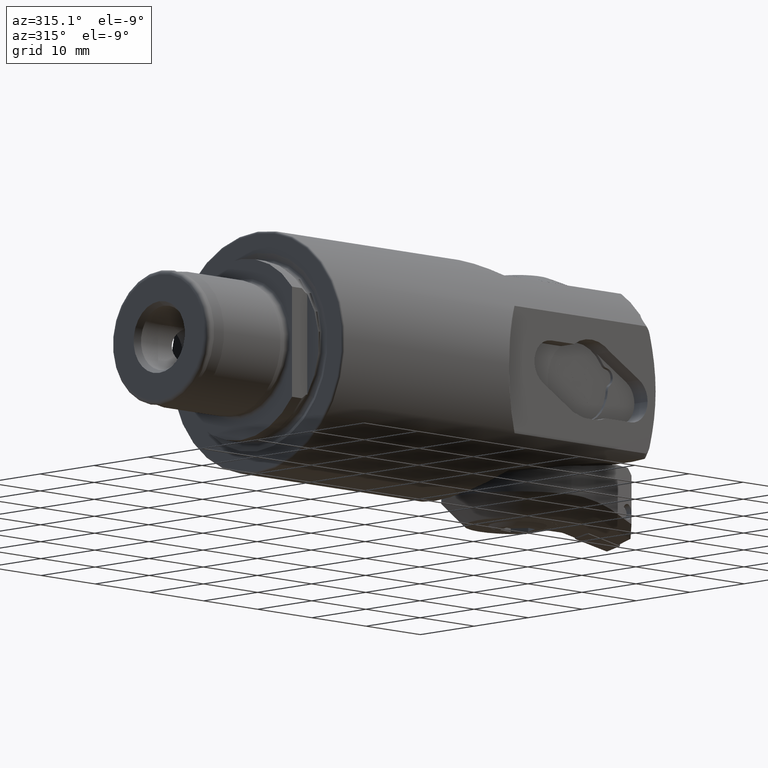
[diagram: clean part render]
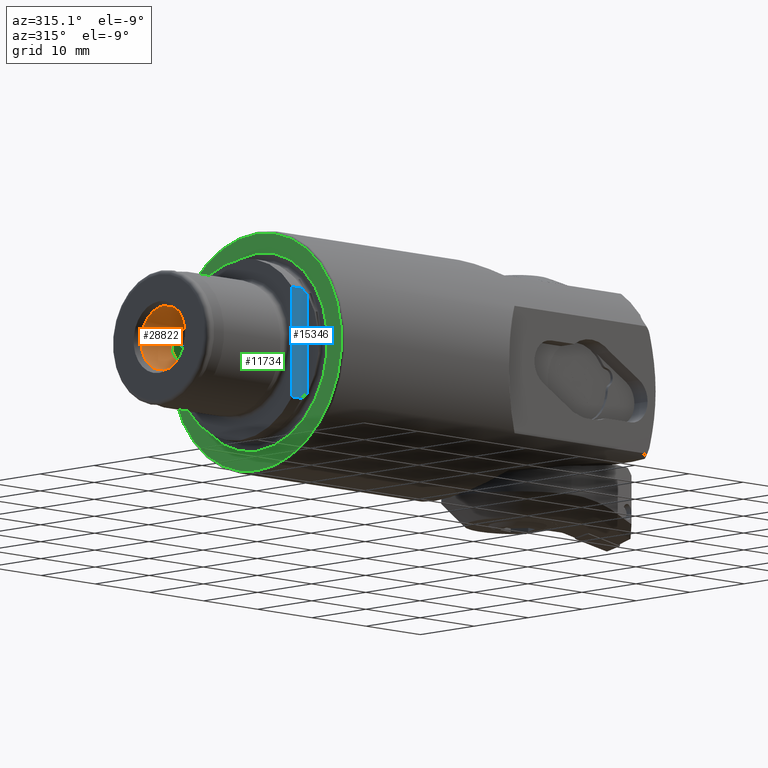
[diagram: same view with three faces highlighted in distinct colors, each labeled with its STEP entity id]
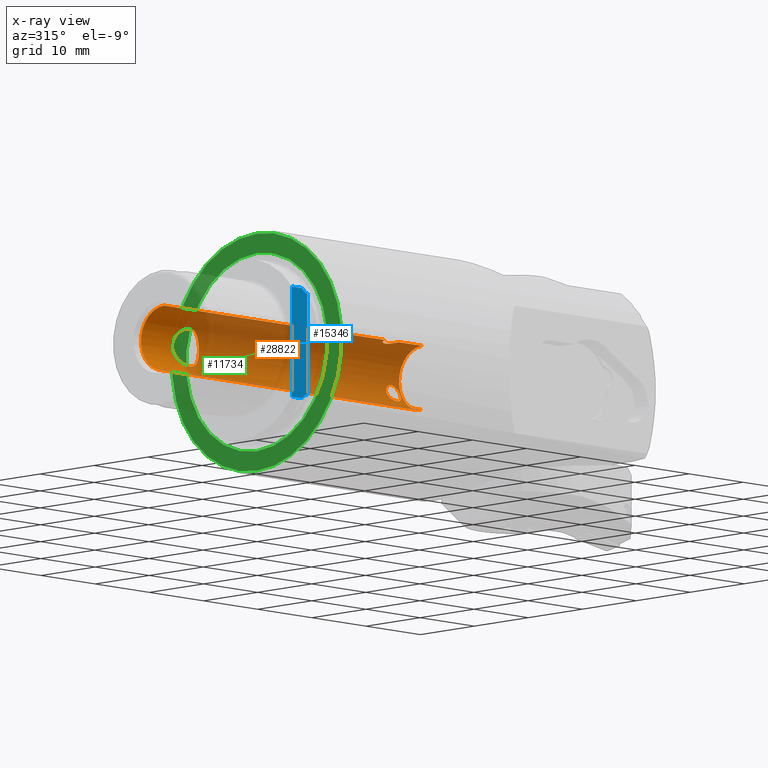
[diagram: x-ray of the same camera — body ghosted, the three highlighted faces saturated]
A machine part, auxiliary view with three faces highlighted in distinct colors.
The next image is the same camera in x-ray (body ghosted, the three faces saturated) — at least one of them is partly hidden behind the body in this view.
Their STEP definitions:

[orange] entity #28822 — the highlighted cylindrical surface (edge-blend (fillet) strip) has radius 4.25 mm, axis along (-1, -0, -0).
#351 = CARTESIAN_POINT ( 'NONE',  ( 26.21695213200542400, 0.3291615389826045300, 4.239965531149507200 ) ) ;
#356 = VECTOR ( 'NONE', #16998, 1000.000000000000000 ) ;
#669 = ORIENTED_EDGE ( 'NONE', *, *, #25901, .T. ) ;
#816 = CARTESIAN_POINT ( 'NONE',  ( -11.18893444467560100, 4.101526246119980200, -1.124291379597246700 ) ) ;
#935 = CARTESIAN_POINT ( 'NONE',  ( -10.21071883500879500, 3.658790314651206600, 2.164765124631216500 ) ) ;
#1009 = CARTESIAN_POINT ( 'NONE',  ( 24.67445332046803600, 1.209642295009307800, 4.074254205722700000 ) ) ;
#1308 = FACE_BOUND ( 'NONE', #12618, .T. ) ;
#1545 = VERTEX_POINT ( 'NONE', #27232 ) ;
#1683 = CARTESIAN_POINT ( 'NONE',  ( 28.67102412604689100, 4.193864457120944200, -0.6915418488532143500 ) ) ;
#1800 = CARTESIAN_POINT ( 'NONE',  ( 28.59461659727033500, 3.148858183602648800, -2.854514902943466200 ) ) ;
#1954 = CARTESIAN_POINT ( 'NONE',  ( 29.63142787527471700, 3.213974647842867200, -2.781571234821815300 ) ) ;
#2063 = CARTESIAN_POINT ( 'NONE',  ( 29.76308255782212000, 4.149770546130420200, -0.9187380376797050800 ) ) ;
#2070 = CARTESIAN_POINT ( 'NONE',  ( -8.290143079132498400, 3.496017747606516800, 2.417020026549793400 ) ) ;
#2154 = CARTESIAN_POINT ( 'NONE',  ( 30.50000000000000000, 4.724661668579258300E-017, 0.0000000000000000000 ) ) ;
#2192 = CARTESIAN_POINT ( 'NONE',  ( -6.466720185775357300, 4.240101146215117500, -0.3330855355430837900 ) ) ;
#2300 = CARTESIAN_POINT ( 'NONE',  ( -8.949999999999999300, 3.436931771216880100, -2.500000000000000900 ) ) ;
#2598 = LINE ( 'NONE', #9349, #15493 ) ;
#3105 = ORIENTED_EDGE ( 'NONE', *, *, #30929, .T. ) ;
#3332 = DIRECTION ( 'NONE',  ( 1.000000000000000000, 6.701708707102589200E-017, -0.0000000000000000000 ) ) ;
#3453 = CARTESIAN_POINT ( 'NONE',  ( -11.36651299544863400, 4.201346210315254100, -0.6617009324695816200 ) ) ;
#3528 = CARTESIAN_POINT ( 'NONE',  ( 30.50000000000000000, 4.250000000000000900, 5.204748896376251700E-016 ) ) ;
#3569 = CARTESIAN_POINT ( 'NONE',  ( -9.770507809446888500, 3.530576453742277000, 2.367099430028719800 ) ) ;
#3632 = ORIENTED_EDGE ( 'NONE', *, *, #13375, .F. ) ;
#3636 = CARTESIAN_POINT ( 'NONE',  ( 24.36841851149325700, 1.091178226869317100, 4.108057053095010700 ) ) ;
#3700 = ORIENTED_EDGE ( 'NONE', *, *, #24212, .T. ) ;
#3815 = CARTESIAN_POINT ( 'NONE',  ( -17.13397459621556300, 0.0000000000000000000, 4.250000000000000000 ) ) ;
#4286 = VERTEX_POINT ( 'NONE', #3528 ) ;
#4314 = CARTESIAN_POINT ( 'NONE',  ( 28.23175585502529100, 4.152389949227670100, -0.9132643871927586000 ) ) ;
#4423 = CARTESIAN_POINT ( 'NONE',  ( 28.83520635664973500, 3.108840705809111900, -2.897911597962548500 ) ) ;
#4589 = CARTESIAN_POINT ( 'NONE',  ( 29.99866346815571900, 3.421159342329648000, -2.524263377602880400 ) ) ;
#4699 = CARTESIAN_POINT ( 'NONE',  ( 29.55482715847881900, 4.176532779095766500, -0.7874840176152266800 ) ) ;
#4709 = CARTESIAN_POINT ( 'NONE',  ( -7.680524606028939200, 3.652509370040384300, 2.178122315138683700 ) ) ;
#4774 = DIRECTION ( 'NONE',  ( 0.0000000000000000000, 1.000000000000000000, 0.0000000000000000000 ) ) ;
#4783 = VERTEX_POINT ( 'NONE', #16272 ) ;
#4812 = CARTESIAN_POINT ( 'NONE',  ( -6.582429229552412900, 4.173137859088035000, -0.8195259147066718000 ) ) ;
#4836 = ORIENTED_EDGE ( 'NONE', *, *, #11604, .T. ) ;
#5967 = CARTESIAN_POINT ( 'NONE',  ( -9.611003927983913900, 3.496218784770274400, -2.416731773402510900 ) ) ;
#6077 = CARTESIAN_POINT ( 'NONE',  ( -11.44984136226545400, 4.249906683711853500, -0.1717722960006755600 ) ) ;
#6145 = CARTESIAN_POINT ( 'NONE',  ( 26.25000000000000700, -3.166329285433502400E-017, 4.250000000000000000 ) ) ;
#6179 = CARTESIAN_POINT ( 'NONE',  ( -9.285824977373092500, 3.449565780944212600, 2.482866232766090400 ) ) ;
#6255 = CARTESIAN_POINT ( 'NONE',  ( 24.05814332193478200, 0.8258736178375156700, 4.169402362585314500 ) ) ;
#6450 = VECTOR ( 'NONE', #13734, 1000.000000000000000 ) ;
#6907 = CARTESIAN_POINT ( 'NONE',  ( 27.90931219072404800, 4.057149101675075400, -1.274984921062619200 ) ) ;
#7018 = CARTESIAN_POINT ( 'NONE',  ( 28.99999999999999300, 3.102954741509931200, -2.904164573873360100 ) ) ;
#7069 = CARTESIAN_POINT ( 'NONE',  ( 28.99999999999999300, 3.102954741509931200, -2.904164573873360100 ) ) ;
#7159 = B_SPLINE_CURVE_WITH_KNOTS ( 'NONE', 3,
 ( #21324, #11001, #16175, #5967, #23826, #8530, #26306, #11113, #28790, #13663, #31343, #16295, #816, #18879, #3453, #21429, #6077, #23935, #8652, #26409, #11220, #28901, #13776, #31448, #16405, #935, #19000, #3569, #21532, #6179, #24044, #8764 ),
 .UNSPECIFIED., .F., .F.,
 ( 4, 2, 2, 2, 2, 2, 2, 2, 2, 2, 2, 2, 2, 2, 2, 4 ),
 ( 0.008008404002363691100, 0.008507975484144829300, 0.009007546965925967600, 0.009507118447707105900, 0.01000668992948824400, 0.01050626141126938300, 0.01100583289305052300, 0.01150540437483166100, 0.01200497585661279900, 0.01250454733839393700, 0.01300411882017507600, 0.01400326178373735200, 0.01450283326551849100, 0.01500240474729962900, 0.01550197622908076700, 0.01600154771086190500 ),
 .UNSPECIFIED. ) ;
#7176 = CARTESIAN_POINT ( 'NONE',  ( 30.21664662150352100, 3.666213955559789900, -2.155051681224539700 ) ) ;
#7281 = CARTESIAN_POINT ( 'NONE',  ( 29.16373965178031800, 4.198882608482636900, -0.6571794581254485300 ) ) ;
#7291 = CARTESIAN_POINT ( 'NONE',  ( -7.072416119982048800, 3.915068301803082300, 1.658319377903160200 ) ) ;
#7377 = FACE_OUTER_BOUND ( 'NONE', #31143, .T. ) ;
#7404 = CARTESIAN_POINT ( 'NONE',  ( -6.959218796294895700, 3.966791312886790900, -1.545410273531937300 ) ) ;
#7482 = AXIS2_PLACEMENT_3D ( 'NONE', #27443, #12279, #29926 ) ;
#7502 = CARTESIAN_POINT ( 'NONE',  ( 30.50000000000000000, 0.0000000000000000000, 4.250000000000000000 ) ) ;
#7688 = VERTEX_POINT ( 'NONE', #27507 ) ;
#8074 = LINE ( 'NONE', #27011, #356 ) ;
#8530 = CARTESIAN_POINT ( 'NONE',  ( -10.07052964949914300, 3.612102332899773200, -2.240728292754028000 ) ) ;
#8652 = CARTESIAN_POINT ( 'NONE',  ( -11.43317842545570600, 4.240041311409288300, 0.3339043449149398100 ) ) ;
#8727 = CARTESIAN_POINT ( 'NONE',  ( 25.99822475607754400, 0.7696265657259833100, 4.181375147283040100 ) ) ;
#8764 = CARTESIAN_POINT ( 'NONE',  ( -8.949999999999999300, 3.436931771216880500, 2.500000000000000000 ) ) ;
#8841 = CARTESIAN_POINT ( 'NONE',  ( 23.91624350170816600, 0.6281570956269464400, 4.203879923137924000 ) ) ;
#9251 = B_SPLINE_CURVE_WITH_KNOTS ( 'NONE', 3,
 ( #27130, #11950, #1683, #19723, #4314, #22238, #6907, #24744, #9515, #27238, #12059, #29730, #14637, #32250, #17255, #1800, #19826, #4423, #22352, #7018 ),
 .UNSPECIFIED., .F., .F.,
 ( 4, 2, 2, 2, 2, 2, 2, 2, 2, 4 ),
 ( 0.003929856006044741800, 0.004420952980091958700, 0.004912049954139174700, 0.005403146928186391600, 0.005894243902233607700, 0.006385340876280823700, 0.006876437850328039800, 0.007367534824375257500, 0.007613083311398865600, 0.007858631798422473600 ),
 .UNSPECIFIED. ) ;
#9349 = CARTESIAN_POINT ( 'NONE',  ( 0.5514955217248775900, 0.0000000000000000000, 4.250000000000000000 ) ) ;
#9457 = DIRECTION ( 'NONE',  ( -1.000000000000000000, -0.0000000000000000000, -0.0000000000000000000 ) ) ;
#9515 = CARTESIAN_POINT ( 'NONE',  ( 27.75001466813963400, 3.892151384614936500, -1.714878361773299900 ) ) ;
#9666 = CIRCLE ( 'NONE', #7482, 4.250000000000000000 ) ;
#9777 = CARTESIAN_POINT ( 'NONE',  ( 30.25003533807620600, 3.855617971280115100, -1.789816510295583900 ) ) ;
#9889 = CARTESIAN_POINT ( 'NONE',  ( -6.788468108492216000, 4.059403133438902200, 1.266381341007942300 ) ) ;
#9999 = CARTESIAN_POINT ( 'NONE',  ( -7.422049178072080100, 3.759235839474058600, -1.985245583915950400 ) ) ;
#10328 = CARTESIAN_POINT ( 'NONE',  ( 28.99999999999999300, 4.198882608482636100, -0.6571794581254488700 ) ) ;
#11001 = CARTESIAN_POINT ( 'NONE',  ( -9.119360981520053100, 3.436931771216947200, -2.500000000000003100 ) ) ;
#11113 = CARTESIAN_POINT ( 'NONE',  ( -10.48013810590364700, 3.760126302069690700, -1.983569451488063700 ) ) ;
#11189 = CARTESIAN_POINT ( 'NONE',  ( 0.5514955217248775900, 0.0000000000000000000, 4.250000000000000000 ) ) ;
#11220 = CARTESIAN_POINT ( 'NONE',  ( -11.31705107725426600, 4.172843866922171700, 0.8209484402078532900 ) ) ;
#11300 = CARTESIAN_POINT ( 'NONE',  ( 25.63020760184215900, 1.091698977648215300, 4.107907839567620700 ) ) ;
#11404 = CARTESIAN_POINT ( 'NONE',  ( 23.78304119283002300, 0.3288577823682014600, 4.239971816620325700 ) ) ;
#11604 = EDGE_CURVE ( 'NONE', #29801, #13285, #25212, .T. ) ;
#11950 = CARTESIAN_POINT ( 'NONE',  ( 28.83630535592719800, 4.198882608482636100, -0.6571794581254483100 ) ) ;
#12059 = CARTESIAN_POINT ( 'NONE',  ( 27.78313695506718900, 3.666538828480125000, -2.154523936809960900 ) ) ;
#12164 = CARTESIAN_POINT ( 'NONE',  ( 0.5514955217248775900, 0.0000000000000000000, 0.0000000000000000000 ) ) ;
#12279 = DIRECTION ( 'NONE',  ( -1.000000000000000000, -0.0000000000000000000, -0.0000000000000000000 ) ) ;
#12284 = DIRECTION ( 'NONE',  ( 0.0000000000000000000, 0.0000000000000000000, 1.000000000000000000 ) ) ;
#12337 = CARTESIAN_POINT ( 'NONE',  ( 30.20963127985775300, 3.952064634057252900, -1.565300004302711400 ) ) ;
#12347 = EDGE_CURVE ( 'NONE', #7688, #4286, #13691, .T. ) ;
#12440 = CARTESIAN_POINT ( 'NONE',  ( -6.584179966403217700, 4.172147053232443200, 0.8243320261206114100 ) ) ;
#12538 = CARTESIAN_POINT ( 'NONE',  ( -7.829714817701678900, 3.612052764132893200, -2.240798026658513900 ) ) ;
#12573 = CYLINDRICAL_SURFACE ( 'NONE', #25962, 4.250000000000000000 ) ;
#12618 = EDGE_LOOP ( 'NONE', ( #21812, #21554 ) ) ;
#13285 = VERTEX_POINT ( 'NONE', #26984 ) ;
#13375 = EDGE_CURVE ( 'NONE', #7688, #4783, #8074, .T. ) ;
#13663 = CARTESIAN_POINT ( 'NONE',  ( -10.82863251612690500, 3.915568280632249400, -1.657158831505805200 ) ) ;
#13691 = CIRCLE ( 'NONE', #19701, 4.250000000000000000 ) ;
#13732 = CARTESIAN_POINT ( 'NONE',  ( 26.25000000000000700, 0.1661712584552241800, 4.250000000000000900 ) ) ;
#13734 = DIRECTION ( 'NONE',  ( -1.000000000000000000, -0.0000000000000000000, -0.0000000000000000000 ) ) ;
#13776 = CARTESIAN_POINT ( 'NONE',  ( -10.94044359331169300, 3.966609160168391900, 1.545900322372182800 ) ) ;
#13853 = CARTESIAN_POINT ( 'NONE',  ( 25.16465668582380400, 1.249925461073418300, 4.062042140084422200 ) ) ;
#13925 = B_SPLINE_CURVE_WITH_KNOTS ( 'NONE', 3,
 ( #14920, #29989, #17523, #2070, #20106, #4709, #22618, #7291, #25103, #9889, #27593, #12440, #30099, #15028, #32612, #17622, #2192, #20200, #4812, #22727, #7404, #25200, #9999, #27698, #12538, #30204, #15149, #32718, #17734, #2300 ),
 .UNSPECIFIED., .F., .F.,
 ( 4, 2, 2, 2, 2, 2, 2, 2, 2, 2, 2, 2, 2, 2, 4 ),
 ( 0.0000000000000000000, 0.0005005252501477327500, 0.001001050500295465500, 0.002002101000590927100, 0.002502626250738658100, 0.003003151500886388300, 0.003503676751034118800, 0.004004202001181849000, 0.004504727251329579600, 0.005005252501477310200, 0.006006303001772770500, 0.006506828251920501000, 0.007007353502068230800, 0.007507878752215961300, 0.008008404002363691100 ),
 .UNSPECIFIED. ) ;
#13965 = CARTESIAN_POINT ( 'NONE',  ( 23.75000000000000400, -8.567111472234331200E-021, 4.250000000000000000 ) ) ;
#14515 = ORIENTED_EDGE ( 'NONE', *, *, #18515, .T. ) ;
#14637 = CARTESIAN_POINT ( 'NONE',  ( 28.00132219804886800, 3.421174207890107500, -2.524242403963291800 ) ) ;
#14760 = ORIENTED_EDGE ( 'NONE', *, *, #12347, .T. ) ;
#14912 = CARTESIAN_POINT ( 'NONE',  ( 30.09111592688449500, 4.056863782910813400, -1.275831771744103900 ) ) ;
#14920 = CARTESIAN_POINT ( 'NONE',  ( -8.949999999999999300, 3.436931771216880500, 2.500000000000000000 ) ) ;
#15028 = CARTESIAN_POINT ( 'NONE',  ( -6.467390343275668300, 4.239707322073575900, 0.3379370541077021900 ) ) ;
#15083 = CARTESIAN_POINT ( 'NONE',  ( -8.949999999999999300, 3.436931771216880100, -2.500000000000000900 ) ) ;
#15149 = CARTESIAN_POINT ( 'NONE',  ( -8.287983905729410200, 3.496387728650832900, -2.416490147920053100 ) ) ;
#15493 = VECTOR ( 'NONE', #9457, 1000.000000000000000 ) ;
#16175 = CARTESIAN_POINT ( 'NONE',  ( -9.285890175099439100, 3.449556755280119200, -2.482880675275207100 ) ) ;
#16272 = CARTESIAN_POINT ( 'NONE',  ( -17.13397459621556300, 5.204748896376250700E-016, -4.250000000000000000 ) ) ;
#16295 = CARTESIAN_POINT ( 'NONE',  ( -11.11182896885780900, 4.059567741326262100, -1.265801194018472100 ) ) ;
#16405 = CARTESIAN_POINT ( 'NONE',  ( -10.47649178221980500, 3.758658237566182800, 1.986313888734846600 ) ) ;
#16472 = CARTESIAN_POINT ( 'NONE',  ( 24.83516110677720000, 1.241790345312263200, 4.064571140109833000 ) ) ;
#16998 = DIRECTION ( 'NONE',  ( -1.000000000000000000, -0.0000000000000000000, -0.0000000000000000000 ) ) ;
#17137 = ORIENTED_EDGE ( 'NONE', *, *, #32516, .T. ) ;
#17255 = CARTESIAN_POINT ( 'NONE',  ( 28.36863480824550600, 3.213999067933139400, -2.781539637969545600 ) ) ;
#17411 = CARTESIAN_POINT ( 'NONE',  ( 29.32914353728787700, 3.126924099950536100, -2.879082708869853400 ) ) ;
#17518 = CARTESIAN_POINT ( 'NONE',  ( 29.82571410399682300, 4.138184997791355200, -0.9702596169569410700 ) ) ;
#17523 = CARTESIAN_POINT ( 'NONE',  ( -8.614558658352452300, 3.449528928600150900, 2.482916847394047300 ) ) ;
#17583 = VERTEX_POINT ( 'NONE', #10328 ) ;
#17622 = CARTESIAN_POINT ( 'NONE',  ( -6.449721215066393400, 4.250163990985662100, -0.1641446584794517300 ) ) ;
#17734 = CARTESIAN_POINT ( 'NONE',  ( -8.780315679072884900, 3.436931771216947200, -2.500000000000004000 ) ) ;
#18471 = CARTESIAN_POINT ( 'NONE',  ( -8.949999999999999300, 3.436931771216880500, 2.500000000000000000 ) ) ;
#18515 = EDGE_CURVE ( 'NONE', #4286, #22567, #22807, .T. ) ;
#18771 = CARTESIAN_POINT ( 'NONE',  ( 30.50000000000000000, 4.724661668579258300E-017, 0.0000000000000000000 ) ) ;
#18879 = CARTESIAN_POINT ( 'NONE',  ( -11.31654730121697300, 4.172557516554271700, -0.8223821647471306600 ) ) ;
#19000 = CARTESIAN_POINT ( 'NONE',  ( -10.06995793739458700, 3.611930621134519000, 2.241001337677532800 ) ) ;
#19076 = CARTESIAN_POINT ( 'NONE',  ( 24.59629918399568600, 1.185871799990202400, 4.081333574036496400 ) ) ;
#19305 = AXIS2_PLACEMENT_3D ( 'NONE', #18771, #3332, #21322 ) ;
#19701 = AXIS2_PLACEMENT_3D ( 'NONE', #2154, #20163, #4774 ) ;
#19723 = CARTESIAN_POINT ( 'NONE',  ( 28.36975232108415000, 4.170742350763061900, -0.8195349028376236500 ) ) ;
#19826 = CARTESIAN_POINT ( 'NONE',  ( 28.67440137328291500, 3.131650671077874200, -2.873246637175280100 ) ) ;
#19979 = CARTESIAN_POINT ( 'NONE',  ( 29.76947433186514800, 3.276839754428038500, -2.708977310520803700 ) ) ;
#20096 = CARTESIAN_POINT ( 'NONE',  ( 29.62802265281875300, 4.168932882763076700, -0.8274501715679638500 ) ) ;
#20106 = CARTESIAN_POINT ( 'NONE',  ( -8.130198076884568100, 3.530405702426771000, 2.367355266063166900 ) ) ;
#20163 = DIRECTION ( 'NONE',  ( 1.000000000000000000, 6.701708707102589200E-017, -0.0000000000000000000 ) ) ;
#20200 = CARTESIAN_POINT ( 'NONE',  ( -6.532669370054022400, 4.201817043717420900, -0.6588909130110856000 ) ) ;
#20224 = EDGE_CURVE ( 'NONE', #31226, #21735, #7159, .T. ) ;
#21046 = FACE_BOUND ( 'NONE', #23054, .T. ) ;
#21322 = DIRECTION ( 'NONE',  ( 0.0000000000000000000, 1.000000000000000000, 0.0000000000000000000 ) ) ;
#21324 = CARTESIAN_POINT ( 'NONE',  ( -8.949999999999999300, 3.436931771216880100, -2.500000000000000900 ) ) ;
#21429 = CARTESIAN_POINT ( 'NONE',  ( -11.43264616313544700, 4.239729577825615400, -0.3374184492171403100 ) ) ;
#21532 = CARTESIAN_POINT ( 'NONE',  ( -9.610266474131648800, 3.496094603768017600, 2.416909458042539000 ) ) ;
#21554 = ORIENTED_EDGE ( 'NONE', *, *, #31121, .F. ) ;
#21601 = CARTESIAN_POINT ( 'NONE',  ( 24.23122296321860200, 0.9990629641527637400, 4.132590757472405200 ) ) ;
#21735 = VERTEX_POINT ( 'NONE', #18471 ) ;
#21812 = ORIENTED_EDGE ( 'NONE', *, *, #22523, .F. ) ;
#22238 = CARTESIAN_POINT ( 'NONE',  ( 28.00102427768126700, 4.095386938603706300, -1.142015741781039000 ) ) ;
#22352 = CARTESIAN_POINT ( 'NONE',  ( 28.91693361408596600, 3.102954741509935700, -2.904164573873362800 ) ) ;
#22393 = CARTESIAN_POINT ( 'NONE',  ( 29.16617844989679000, 3.102954741509935700, -2.904164573873362800 ) ) ;
#22501 = CARTESIAN_POINT ( 'NONE',  ( 30.09164123311096300, 3.503759220983925900, -2.410195809070333300 ) ) ;
#22523 = EDGE_CURVE ( 'NONE', #1545, #17583, #25366, .T. ) ;
#22567 = VERTEX_POINT ( 'NONE', #7502 ) ;
#22611 = CARTESIAN_POINT ( 'NONE',  ( 29.32882710667866600, 4.193871810529953900, -0.6914967594179051200 ) ) ;
#22618 = CARTESIAN_POINT ( 'NONE',  ( -7.410689511899343000, 3.760549308797425100, 1.995470060851040900 ) ) ;
#22727 = CARTESIAN_POINT ( 'NONE',  ( -6.773937539498486000, 4.066509656143492400, -1.273895003448257700 ) ) ;
#22807 = CIRCLE ( 'NONE', #19305, 4.250000000000000000 ) ;
#23054 = EDGE_LOOP ( 'NONE', ( #3700, #27491 ) ) ;
#23826 = CARTESIAN_POINT ( 'NONE',  ( -9.770778278787444600, 3.530633590570194900, -2.367017742735736200 ) ) ;
#23935 = CARTESIAN_POINT ( 'NONE',  ( -11.45015647629201000, 4.250092044851541600, 0.1671231648266812100 ) ) ;
#24002 = CARTESIAN_POINT ( 'NONE',  ( 26.09108583613213700, 0.6315469171247482000, 4.205568156093956800 ) ) ;
#24044 = CARTESIAN_POINT ( 'NONE',  ( -9.119365922150784300, 3.436931771216880500, 2.499999999999999600 ) ) ;
#24116 = CARTESIAN_POINT ( 'NONE',  ( 24.00673883581616900, 0.7632442231032332500, 4.181464576060419000 ) ) ;
#24212 = EDGE_CURVE ( 'NONE', #21735, #31226, #13925, .T. ) ;
#24744 = CARTESIAN_POINT ( 'NONE',  ( 27.78245948767801800, 3.954639391429304300, -1.564248275024007700 ) ) ;
#24994 = CARTESIAN_POINT ( 'NONE',  ( 30.24992897379239000, 3.747677756812979300, -2.011055383381728400 ) ) ;
#25093 = CARTESIAN_POINT ( 'NONE',  ( 28.99999999999999300, 4.198882608482636100, -0.6571794581254488700 ) ) ;
#25103 = CARTESIAN_POINT ( 'NONE',  ( -6.968838554235398800, 3.966299831827195400, 1.533277908493503100 ) ) ;
#25200 = CARTESIAN_POINT ( 'NONE',  ( -7.297635395967075700, 3.812183057567279000, -1.882834802626088200 ) ) ;
#25212 = B_SPLINE_CURVE_WITH_KNOTS ( 'NONE', 3,
 ( #6145, #13732, #351, #24002, #8727, #26481, #11300, #28976, #13853, #31522, #16472, #1009, #19076, #3636, #21601, #6255, #24116, #8841, #26595, #11404, #29085, #13965 ),
 .UNSPECIFIED., .F., .F.,
 ( 4, 2, 2, 2, 2, 2, 2, 2, 2, 2, 4 ),
 ( 3.074599605677551800E-020, 0.0004912396444024559600, 0.0009824792888049119200, 0.001473718933207367900, 0.001964958577609823800, 0.002210578399811051800, 0.002456198222012279800, 0.002947437866414735800, 0.003193057688615964200, 0.003438677510817192200, 0.003929917155219649400 ),
 .UNSPECIFIED. ) ;
#25366 = B_SPLINE_CURVE_WITH_KNOTS ( 'NONE', 3,
 ( #7069, #22393, #17411, #1954, #19979, #4589, #22501, #7176, #24994, #9777, #27487, #12337, #29979, #14912, #32498, #17518, #2063, #20096, #4699, #22611, #7281, #25093 ),
 .UNSPECIFIED., .F., .F.,
 ( 4, 2, 2, 2, 2, 2, 2, 2, 2, 2, 4 ),
 ( 0.0000000000000000000, 0.0004912320007555919600, 0.0009824640015111839200, 0.001473696002266776000, 0.001964928003022367800, 0.002210544003400163400, 0.002456160003777958600, 0.002947392004533545500, 0.003193008004911342400, 0.003438624005289138900, 0.003929856006044741800 ),
 .UNSPECIFIED. ) ;
#25901 = EDGE_CURVE ( 'NONE', #22567, #29801, #2598, .T. ) ;
#25962 = AXIS2_PLACEMENT_3D ( 'NONE', #12164, #29933, #12284 ) ;
#26306 = CARTESIAN_POINT ( 'NONE',  ( -10.21334094108633600, 3.659679974779597200, -2.163293798491121600 ) ) ;
#26409 = CARTESIAN_POINT ( 'NONE',  ( -11.36705442601527200, 4.201657688118911200, 0.6599356831401975700 ) ) ;
#26481 = CARTESIAN_POINT ( 'NONE',  ( 25.76889057471961700, 0.9987917693015785400, 4.132630902290072700 ) ) ;
#26595 = CARTESIAN_POINT ( 'NONE',  ( 23.87696444912231500, 0.5549326051945896500, 4.214297321663676300 ) ) ;
#26743 = LINE ( 'NONE', #11189, #6450 ) ;
#26984 = CARTESIAN_POINT ( 'NONE',  ( 23.75000000000000400, -8.567111472234331200E-021, 4.250000000000000000 ) ) ;
#27011 = CARTESIAN_POINT ( 'NONE',  ( 0.5514955217248775900, 5.204748896376250700E-016, -4.250000000000000000 ) ) ;
#27130 = CARTESIAN_POINT ( 'NONE',  ( 28.99999999999999300, 4.198882608482636100, -0.6571794581254488700 ) ) ;
#27232 = CARTESIAN_POINT ( 'NONE',  ( 28.99999999999999300, 3.102954741509931200, -2.904164573873360100 ) ) ;
#27238 = CARTESIAN_POINT ( 'NONE',  ( 27.74998534175942000, 3.747695533104670900, -2.011076425098147400 ) ) ;
#27345 = VERTEX_POINT ( 'NONE', #3815 ) ;
#27443 = CARTESIAN_POINT ( 'NONE',  ( -17.13397459621556300, 0.0000000000000000000, 0.0000000000000000000 ) ) ;
#27487 = CARTESIAN_POINT ( 'NONE',  ( 30.24178614741040900, 3.889960304004818100, -1.713822572060161900 ) ) ;
#27491 = ORIENTED_EDGE ( 'NONE', *, *, #20224, .T. ) ;
#27507 = CARTESIAN_POINT ( 'NONE',  ( 30.50000000000000000, 5.204748896376250700E-016, -4.250000000000000000 ) ) ;
#27593 = CARTESIAN_POINT ( 'NONE',  ( -6.711408381066712900, 4.101341126849441700, 1.124871230095973800 ) ) ;
#27698 = CARTESIAN_POINT ( 'NONE',  ( -7.688846548696184300, 3.658924488192060800, -2.164561321596702600 ) ) ;
#28529 = CARTESIAN_POINT ( 'NONE',  ( 26.25000000000000700, -3.166329285433502400E-017, 4.250000000000000000 ) ) ;
#28790 = CARTESIAN_POINT ( 'NONE',  ( -10.60282677047961300, 3.812381298199085700, -1.882445003253193900 ) ) ;
#28822 = ADVANCED_FACE ( 'NONE', ( #7377, #21046, #1308 ), #12573, .F. ) ;
#28901 = CARTESIAN_POINT ( 'NONE',  ( -11.12578906747076100, 4.066366757640398800, 1.274162669801590200 ) ) ;
#28976 = CARTESIAN_POINT ( 'NONE',  ( 25.32977093881579800, 1.216642678492887900, 4.072651970037328300 ) ) ;
#29085 = CARTESIAN_POINT ( 'NONE',  ( 23.75000000000001800, 0.1637480716675240600, 4.250000000000002700 ) ) ;
#29730 = CARTESIAN_POINT ( 'NONE',  ( 27.90835747582542900, 3.503717361609620400, -2.410279034675201000 ) ) ;
#29801 = VERTEX_POINT ( 'NONE', #28529 ) ;
#29926 = DIRECTION ( 'NONE',  ( 0.0000000000000000000, 0.0000000000000000000, 1.000000000000000000 ) ) ;
#29933 = DIRECTION ( 'NONE',  ( -1.000000000000000000, -0.0000000000000000000, -0.0000000000000000000 ) ) ;
#29979 = CARTESIAN_POINT ( 'NONE',  ( 30.18585365876120700, 3.980215110902652200, -1.492057400592709400 ) ) ;
#29989 = CARTESIAN_POINT ( 'NONE',  ( -8.780310729009629600, 3.436931771216880100, 2.499999999999999600 ) ) ;
#30099 = CARTESIAN_POINT ( 'NONE',  ( -6.533860636026943800, 4.201130430648815300, 0.6631913253803712900 ) ) ;
#30204 = CARTESIAN_POINT ( 'NONE',  ( -8.128106184868279600, 3.530919954424721400, -2.366580918245156700 ) ) ;
#30929 = EDGE_CURVE ( 'NONE', #13285, #27345, #26743, .T. ) ;
#31121 = EDGE_CURVE ( 'NONE', #17583, #1545, #9251, .T. ) ;
#31143 = EDGE_LOOP ( 'NONE', ( #3632, #14760, #14515, #669, #4836, #3105, #17137 ) ) ;
#31226 = VERTEX_POINT ( 'NONE', #15083 ) ;
#31343 = CARTESIAN_POINT ( 'NONE',  ( -10.93223159205088300, 3.966841040468922100, -1.531833890748872900 ) ) ;
#31448 = CARTESIAN_POINT ( 'NONE',  ( -10.60162719533696900, 3.811860179127865200, 1.883493027287289000 ) ) ;
#31522 = CARTESIAN_POINT ( 'NONE',  ( 24.91852191989136500, 1.250037076677460400, 4.062007792760493200 ) ) ;
#32250 = CARTESIAN_POINT ( 'NONE',  ( 28.23045499751553000, 3.276878418012601400, -2.708929771747899700 ) ) ;
#32498 = CARTESIAN_POINT ( 'NONE',  ( 29.99895140732645200, 4.095406529538038000, -1.141954709604780000 ) ) ;
#32516 = EDGE_CURVE ( 'NONE', #27345, #4783, #9666, .T. ) ;
#32612 = CARTESIAN_POINT ( 'NONE',  ( -6.450285815688089600, 4.249831873278314000, 0.1725296149831668200 ) ) ;
#32718 = CARTESIAN_POINT ( 'NONE',  ( -8.614093975716622600, 3.449535432074398900, -2.482913024436839600 ) ) ;

[blue] entity #15346 — the highlighted planar face has unit normal (0, -1, 0).
#159 = VERTEX_POINT ( 'NONE', #19375 ) ;
#280 = CARTESIAN_POINT ( 'NONE',  ( -0.5035709570447475200, -9.500000000000000000, 6.797116413150234800 ) ) ;
#448 = B_SPLINE_CURVE_WITH_KNOTS ( 'NONE', 3,
 ( #16935, #1496, #19536, #4099 ),
 .UNSPECIFIED., .F., .F.,
 ( 4, 4 ),
 ( 0.01042464726496666000, 0.01122204267442680800 ),
 .UNSPECIFIED. ) ;
#589 = EDGE_CURVE ( 'NONE', #9552, #26381, #14616, .T. ) ;
#680 = CARTESIAN_POINT ( 'NONE',  ( -0.1499999999999999900, -9.500000000000000000, 6.714596780918523000 ) ) ;
#1496 = CARTESIAN_POINT ( 'NONE',  ( -0.9220184284008929900, -9.500000000000000000, -7.128393479506466500 ) ) ;
#1593 = CARTESIAN_POINT ( 'NONE',  ( -0.2500000000000001700, -9.500000000000000000, 6.700046641628691900 ) ) ;
#1896 = EDGE_LOOP ( 'NONE', ( #16954, #24049, #10290, #4343, #22482, #30712, #18195, #23888, #7535, #8592 ) ) ;
#2009 = B_SPLINE_CURVE_WITH_KNOTS ( 'NONE', 3,
 ( #13907, #29033, #19137, #3693, #21645, #6312 ),
 .UNSPECIFIED., .F., .F.,
 ( 4, 2, 4 ),
 ( 0.004926655293143785600, 0.005063940159639557900, 0.005201225026135329400 ),
 .UNSPECIFIED. ) ;
#3290 = CARTESIAN_POINT ( 'NONE',  ( -0.2160619950023482100, -9.500000000000000000, 6.701303026369363800 ) ) ;
#3578 = CARTESIAN_POINT ( 'NONE',  ( -0.2331855074417942000, -9.499999999999998200, -6.700046641628803800 ) ) ;
#3693 = CARTESIAN_POINT ( 'NONE',  ( -0.4276727299030980100, -9.500000000000000000, 6.743723515964605400 ) ) ;
#3780 = DIRECTION ( 'NONE',  ( -1.000000000000000000, -0.0000000000000000000, -0.0000000000000000000 ) ) ;
#4099 = CARTESIAN_POINT ( 'NONE',  ( -0.5035709570444205600, -9.500000000000000000, -6.797116413150202900 ) ) ;
#4326 = CARTESIAN_POINT ( 'NONE',  ( -2.950000000000000600, -9.500000000000003600, 7.290447517128146900 ) ) ;
#4343 = ORIENTED_EDGE ( 'NONE', *, *, #589, .T. ) ;
#4930 = EDGE_CURVE ( 'NONE', #20979, #24387, #26365, .T. ) ;
#5194 = VECTOR ( 'NONE', #3780, 1000.000000000000000 ) ;
#5466 = B_SPLINE_CURVE_WITH_KNOTS ( 'NONE', 3,
 ( #13789, #3578, #6191, #24054, #8776, #26538 ),
 .UNSPECIFIED., .F., .F.,
 ( 4, 2, 4 ),
 ( 9.026683852806787000E-005, 0.0001405732738718612600, 0.0001908797092156546600 ),
 .UNSPECIFIED. ) ;
#5926 = CARTESIAN_POINT ( 'NONE',  ( -0.2500000000000001700, -9.500000000000000000, 6.700046641628691900 ) ) ;
#6059 = CARTESIAN_POINT ( 'NONE',  ( -0.1499999999999999900, -9.500000000000000000, 6.714596780918523000 ) ) ;
#6191 = CARTESIAN_POINT ( 'NONE',  ( -0.2161448894626417600, -9.500000000000001800, -6.701294294045143700 ) ) ;
#6312 = CARTESIAN_POINT ( 'NONE',  ( -0.5035709570447475200, -9.500000000000000000, 6.797116413150234800 ) ) ;
#6720 = CARTESIAN_POINT ( 'NONE',  ( -0.1499999999999999900, -9.500000000000000000, -6.714596780918523000 ) ) ;
#7144 = EDGE_CURVE ( 'NONE', #159, #24760, #9131, .T. ) ;
#7535 = ORIENTED_EDGE ( 'NONE', *, *, #7144, .F. ) ;
#8592 = ORIENTED_EDGE ( 'NONE', *, *, #22137, .F. ) ;
#8776 = CARTESIAN_POINT ( 'NONE',  ( -0.1661228663407650900, -9.500000000000001800, -6.709875121507482600 ) ) ;
#9131 = LINE ( 'NONE', #13623, #28535 ) ;
#9552 = VERTEX_POINT ( 'NONE', #6720 ) ;
#9763 = VERTEX_POINT ( 'NONE', #1593 ) ;
#10177 = AXIS2_PLACEMENT_3D ( 'NONE', #26977, #11781, #29446 ) ;
#10290 = ORIENTED_EDGE ( 'NONE', *, *, #13667, .T. ) ;
#10556 = CARTESIAN_POINT ( 'NONE',  ( -0.7117733968117867500, -9.500000000000000000, 6.963964673898071400 ) ) ;
#11063 = LINE ( 'NONE', #25022, #11855 ) ;
#11081 = EDGE_CURVE ( 'NONE', #30292, #13940, #32864, .T. ) ;
#11681 = PLANE ( 'NONE',  #10177 ) ;
#11747 = DIRECTION ( 'NONE',  ( -0.0000000000000000000, 0.0000000000000000000, 1.000000000000000000 ) ) ;
#11781 = DIRECTION ( 'NONE',  ( 0.0000000000000000000, -1.000000000000000000, 0.0000000000000000000 ) ) ;
#11855 = VECTOR ( 'NONE', #12462, 1000.000000000000000 ) ;
#11872 = B_SPLINE_CURVE_WITH_KNOTS ( 'NONE', 3,
 ( #680, #16128, #18736, #3290, #21278, #5926 ),
 .UNSPECIFIED., .F., .F.,
 ( 4, 2, 4 ),
 ( 0.004826532787920750900, 0.004876594040532268200, 0.004926655293143785600 ),
 .UNSPECIFIED. ) ;
#11905 = CARTESIAN_POINT ( 'NONE',  ( -1.133594219764112500, -9.500000000000000000, -7.290447517128149500 ) ) ;
#11999 = CARTESIAN_POINT ( 'NONE',  ( -0.1499999999999973600, -9.500000000000000000, -7.290447517128149500 ) ) ;
#12074 = CARTESIAN_POINT ( 'NONE',  ( -0.2500000000006941100, -9.500000000000000000, -6.700046641625081500 ) ) ;
#12183 = CARTESIAN_POINT ( 'NONE',  ( -0.2960169963787270800, -9.500000000000001800, -6.700046641628880200 ) ) ;
#12462 = DIRECTION ( 'NONE',  ( -1.000000000000000000, -0.0000000000000000000, -0.0000000000000000000 ) ) ;
#13394 = DIRECTION ( 'NONE',  ( 0.0000000000000000000, 0.0000000000000000000, 1.000000000000000000 ) ) ;
#13539 = CARTESIAN_POINT ( 'NONE',  ( -0.3421084205378476200, -9.500000000000000000, -6.709556162475869300 ) ) ;
#13623 = CARTESIAN_POINT ( 'NONE',  ( -2.950000000000000600, -9.500000000000000000, -7.290447517128149500 ) ) ;
#13667 = EDGE_CURVE ( 'NONE', #24387, #9552, #5466, .T. ) ;
#13755 = CARTESIAN_POINT ( 'NONE',  ( -0.4280267599753838600, -9.500000000000001800, -6.743907391898615000 ) ) ;
#13789 = CARTESIAN_POINT ( 'NONE',  ( -0.2500000000006941100, -9.500000000000000000, -6.700046641625081500 ) ) ;
#13907 = CARTESIAN_POINT ( 'NONE',  ( -0.2500000000000001700, -9.500000000000000000, 6.700046641628691900 ) ) ;
#13940 = VERTEX_POINT ( 'NONE', #30199 ) ;
#13980 = CARTESIAN_POINT ( 'NONE',  ( -0.4677237084169933400, -9.499999999999998200, -6.768389319014279900 ) ) ;
#14204 = EDGE_CURVE ( 'NONE', #27466, #20979, #448, .T. ) ;
#14616 = LINE ( 'NONE', #11999, #15429 ) ;
#15252 = EDGE_CURVE ( 'NONE', #9763, #30292, #2009, .T. ) ;
#15346 = ADVANCED_FACE ( 'NONE', ( #22374 ), #11681, .T. ) ;
#15429 = VECTOR ( 'NONE', #11747, 1000.000000000000000 ) ;
#16128 = CARTESIAN_POINT ( 'NONE',  ( -0.1660890463651576200, -9.499999999999998200, 6.709885025850960400 ) ) ;
#16935 = CARTESIAN_POINT ( 'NONE',  ( -1.133594219764112500, -9.500000000000000000, -7.290447517128149500 ) ) ;
#16954 = ORIENTED_EDGE ( 'NONE', *, *, #14204, .T. ) ;
#18195 = ORIENTED_EDGE ( 'NONE', *, *, #11081, .T. ) ;
#18309 = CARTESIAN_POINT ( 'NONE',  ( -1.133594219764112500, -9.500000000000003600, 7.290447517128146900 ) ) ;
#18528 = CARTESIAN_POINT ( 'NONE',  ( -0.5035709570444205600, -9.500000000000000000, -6.797116413150202900 ) ) ;
#18627 = EDGE_CURVE ( 'NONE', #13940, #24760, #32153, .T. ) ;
#18736 = CARTESIAN_POINT ( 'NONE',  ( -0.1825058222798745200, -9.500000000000001800, 6.706240194861877100 ) ) ;
#19137 = CARTESIAN_POINT ( 'NONE',  ( -0.3418242025934660800, -9.500000000000001800, 6.709485174750219500 ) ) ;
#19375 = CARTESIAN_POINT ( 'NONE',  ( -2.950000000000000600, -9.500000000000000000, -7.290447517128149500 ) ) ;
#19536 = CARTESIAN_POINT ( 'NONE',  ( -0.7119224968675071900, -9.500000000000000000, -6.964084158977124500 ) ) ;
#20979 = VERTEX_POINT ( 'NONE', #22707 ) ;
#21278 = CARTESIAN_POINT ( 'NONE',  ( -0.2330310391902821700, -9.500000000000001800, 6.700046641628694600 ) ) ;
#21645 = CARTESIAN_POINT ( 'NONE',  ( -0.4674912082988583200, -9.500000000000001800, 6.768202999200018300 ) ) ;
#22137 = EDGE_CURVE ( 'NONE', #27466, #159, #11063, .T. ) ;
#22374 = FACE_OUTER_BOUND ( 'NONE', #1896, .T. ) ;
#22482 = ORIENTED_EDGE ( 'NONE', *, *, #32267, .T. ) ;
#22707 = CARTESIAN_POINT ( 'NONE',  ( -0.5035709570444205600, -9.500000000000000000, -6.797116413150202900 ) ) ;
#23281 = CARTESIAN_POINT ( 'NONE',  ( -0.2500000000006941100, -9.500000000000000000, -6.700046641625081500 ) ) ;
#23888 = ORIENTED_EDGE ( 'NONE', *, *, #18627, .T. ) ;
#24049 = ORIENTED_EDGE ( 'NONE', *, *, #4930, .T. ) ;
#24054 = CARTESIAN_POINT ( 'NONE',  ( -0.1825639521166483000, -9.500000000000000000, -6.706228192593197700 ) ) ;
#24387 = VERTEX_POINT ( 'NONE', #23281 ) ;
#24760 = VERTEX_POINT ( 'NONE', #4326 ) ;
#25022 = CARTESIAN_POINT ( 'NONE',  ( 45.70738233589843000, -9.500000000000000000, -7.290447517128149500 ) ) ;
#26365 = B_SPLINE_CURVE_WITH_KNOTS ( 'NONE', 3,
 ( #18528, #13980, #13755, #13539, #12183, #12074 ),
 .UNSPECIFIED., .F., .F.,
 ( 4, 2, 4 ),
 ( 0.004770283804107076200, 0.004907959743178681700, 0.005045635682250286400 ),
 .UNSPECIFIED. ) ;
#26381 = VERTEX_POINT ( 'NONE', #6059 ) ;
#26538 = CARTESIAN_POINT ( 'NONE',  ( -0.1499999999999999900, -9.500000000000000000, -6.714596780918523000 ) ) ;
#26977 = CARTESIAN_POINT ( 'NONE',  ( 45.70738233589843000, -9.500000000000000000, -7.290447517128149500 ) ) ;
#27466 = VERTEX_POINT ( 'NONE', #11905 ) ;
#28250 = CARTESIAN_POINT ( 'NONE',  ( -0.9218748820032580700, -9.500000000000000000, 7.128283531798485000 ) ) ;
#28535 = VECTOR ( 'NONE', #13394, 1000.000000000000000 ) ;
#29033 = CARTESIAN_POINT ( 'NONE',  ( -0.2965346230429340400, -9.499999999999998200, 6.700046641628692800 ) ) ;
#29217 = CARTESIAN_POINT ( 'NONE',  ( 45.70738233589843000, -9.500000000000003600, 7.290447517128146900 ) ) ;
#29446 = DIRECTION ( 'NONE',  ( 0.0000000000000000000, -0.0000000000000000000, -1.000000000000000000 ) ) ;
#30199 = CARTESIAN_POINT ( 'NONE',  ( -1.133594219764112500, -9.500000000000003600, 7.290447517128146900 ) ) ;
#30292 = VERTEX_POINT ( 'NONE', #30919 ) ;
#30712 = ORIENTED_EDGE ( 'NONE', *, *, #15252, .T. ) ;
#30919 = CARTESIAN_POINT ( 'NONE',  ( -0.5035709570447475200, -9.500000000000000000, 6.797116413150234800 ) ) ;
#32153 = LINE ( 'NONE', #29217, #5194 ) ;
#32267 = EDGE_CURVE ( 'NONE', #26381, #9763, #11872, .T. ) ;
#32864 = B_SPLINE_CURVE_WITH_KNOTS ( 'NONE', 3,
 ( #280, #10556, #28250, #18309 ),
 .UNSPECIFIED., .F., .F.,
 ( 4, 4 ),
 ( 0.02809434223629926300, 0.02889067246149117100 ),
 .UNSPECIFIED. ) ;

[green] entity #11734 — the highlighted planar face has unit normal (1, 0, 0).
#29 = FACE_OUTER_BOUND ( 'NONE', #20842, .T. ) ;
#379 = CARTESIAN_POINT ( 'NONE',  ( 0.0000000000000000000, 1.605339795255561400E-015, -13.10859421976411100 ) ) ;
#1742 = CARTESIAN_POINT ( 'NONE',  ( 0.0000000000000000000, 0.0000000000000000000, 13.10859421976411100 ) ) ;
#2512 = CIRCLE ( 'NONE', #7360, 13.10859421976411100 ) ;
#3157 = CARTESIAN_POINT ( 'NONE',  ( 0.0000000000000000000, 0.0000000000000000000, 0.0000000000000000000 ) ) ;
#4031 = EDGE_CURVE ( 'NONE', #26755, #4572, #31150, .T. ) ;
#4572 = VERTEX_POINT ( 'NONE', #21687 ) ;
#5782 = DIRECTION ( 'NONE',  ( 0.0000000000000000000, 0.0000000000000000000, 1.000000000000000000 ) ) ;
#6371 = DIRECTION ( 'NONE',  ( -1.000000000000000000, -0.0000000000000000000, -0.0000000000000000000 ) ) ;
#7360 = AXIS2_PLACEMENT_3D ( 'NONE', #3157, #21156, #5782 ) ;
#7574 = DIRECTION ( 'NONE',  ( -1.000000000000000000, -0.0000000000000000000, -0.0000000000000000000 ) ) ;
#7735 = FACE_BOUND ( 'NONE', #12660, .T. ) ;
#11120 = VERTEX_POINT ( 'NONE', #379 ) ;
#11734 = ADVANCED_FACE ( 'NONE', ( #7735, #29 ), #24741, .F. ) ;
#12660 = EDGE_LOOP ( 'NONE', ( #26874, #29125 ) ) ;
#17251 = DIRECTION ( 'NONE',  ( 0.0000000000000000000, 0.0000000000000000000, -1.000000000000000000 ) ) ;
#18829 = CARTESIAN_POINT ( 'NONE',  ( 0.0000000000000000000, 0.0000000000000000000, 15.69999999999999900 ) ) ;
#19721 = CARTESIAN_POINT ( 'NONE',  ( 0.0000000000000000000, 13.10859421976411100, 0.0000000000000000000 ) ) ;
#19934 = CIRCLE ( 'NONE', #28160, 15.69999999999999900 ) ;
#20810 = ORIENTED_EDGE ( 'NONE', *, *, #4031, .T. ) ;
#20842 = EDGE_LOOP ( 'NONE', ( #20810, #22708 ) ) ;
#21156 = DIRECTION ( 'NONE',  ( -1.000000000000000000, -0.0000000000000000000, -0.0000000000000000000 ) ) ;
#21687 = CARTESIAN_POINT ( 'NONE',  ( 0.0000000000000000000, 1.941065176648554700E-015, -15.69999999999999900 ) ) ;
#21707 = CARTESIAN_POINT ( 'NONE',  ( 0.0000000000000000000, 0.0000000000000000000, 0.0000000000000000000 ) ) ;
#22708 = ORIENTED_EDGE ( 'NONE', *, *, #22962, .T. ) ;
#22885 = CARTESIAN_POINT ( 'NONE',  ( 0.0000000000000000000, 0.0000000000000000000, 0.0000000000000000000 ) ) ;
#22962 = EDGE_CURVE ( 'NONE', #4572, #26755, #19934, .T. ) ;
#24184 = VERTEX_POINT ( 'NONE', #1742 ) ;
#24237 = DIRECTION ( 'NONE',  ( 0.0000000000000000000, 0.0000000000000000000, 1.000000000000000000 ) ) ;
#24741 = PLANE ( 'NONE',  #27601 ) ;
#25055 = EDGE_CURVE ( 'NONE', #11120, #24184, #2512, .T. ) ;
#25379 = DIRECTION ( 'NONE',  ( 0.0000000000000000000, 0.0000000000000000000, 1.000000000000000000 ) ) ;
#26755 = VERTEX_POINT ( 'NONE', #18829 ) ;
#26874 = ORIENTED_EDGE ( 'NONE', *, *, #29611, .F. ) ;
#27601 = AXIS2_PLACEMENT_3D ( 'NONE', #19721, #32248, #17251 ) ;
#27965 = CIRCLE ( 'NONE', #31436, 13.10859421976411100 ) ;
#28160 = AXIS2_PLACEMENT_3D ( 'NONE', #21707, #6371, #24237 ) ;
#28953 = AXIS2_PLACEMENT_3D ( 'NONE', #31023, #30918, #30793 ) ;
#29125 = ORIENTED_EDGE ( 'NONE', *, *, #25055, .F. ) ;
#29611 = EDGE_CURVE ( 'NONE', #24184, #11120, #27965, .T. ) ;
#30793 = DIRECTION ( 'NONE',  ( 0.0000000000000000000, 0.0000000000000000000, 1.000000000000000000 ) ) ;
#30918 = DIRECTION ( 'NONE',  ( -1.000000000000000000, -0.0000000000000000000, -0.0000000000000000000 ) ) ;
#31023 = CARTESIAN_POINT ( 'NONE',  ( 0.0000000000000000000, 0.0000000000000000000, 0.0000000000000000000 ) ) ;
#31150 = CIRCLE ( 'NONE', #28953, 15.69999999999999900 ) ;
#31436 = AXIS2_PLACEMENT_3D ( 'NONE', #22885, #7574, #25379 ) ;
#32248 = DIRECTION ( 'NONE',  ( 1.000000000000000000, 0.0000000000000000000, 0.0000000000000000000 ) ) ;